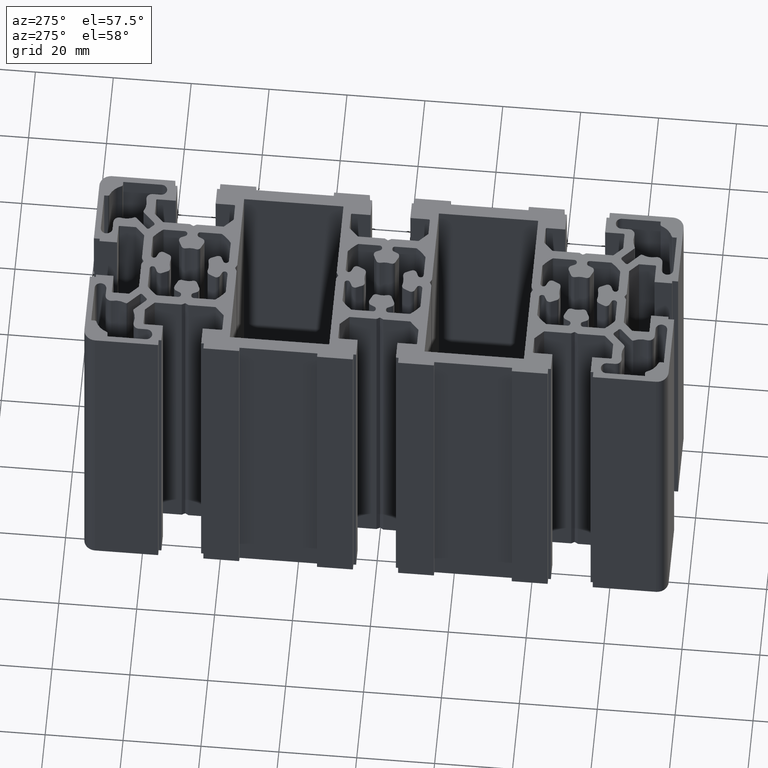
[diagram: clean part render]
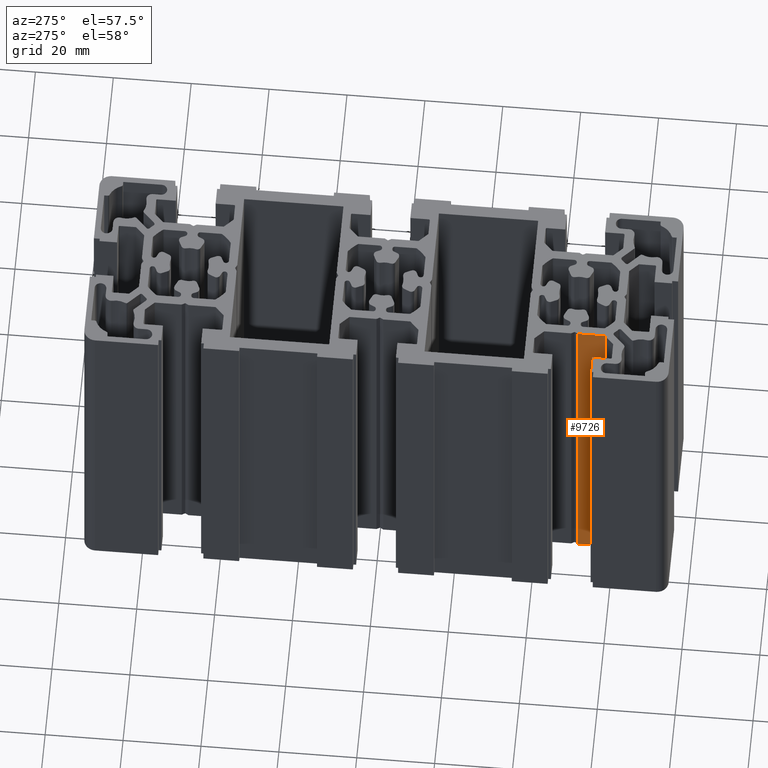
[diagram: same view with one face highlighted and labeled with its STEP entity id]
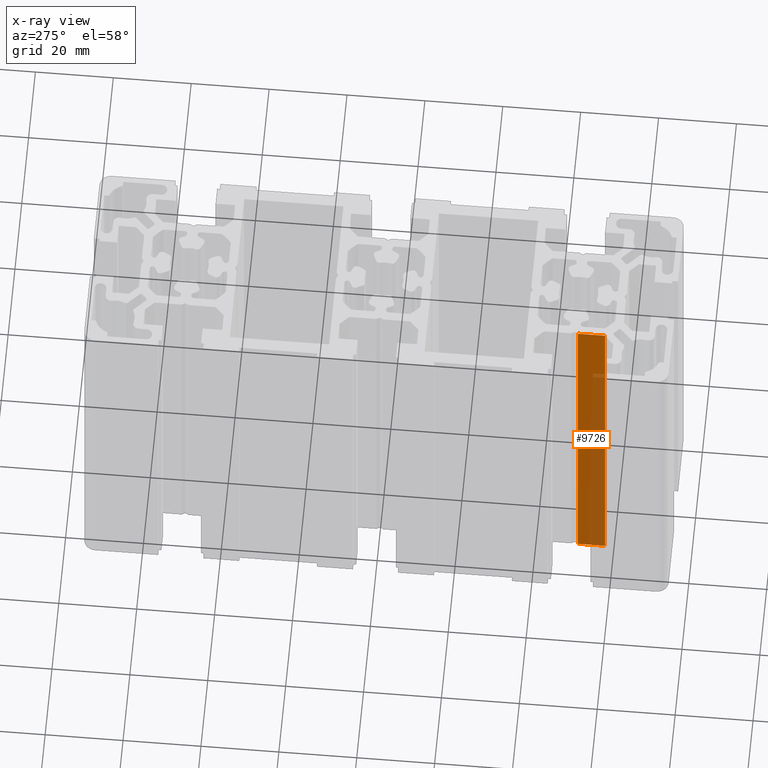
[diagram: x-ray of the same camera — body ghosted, the highlighted face saturated]
A machine part, auxiliary view. The second image highlights one B-rep face of the part: STEP entity #9726.
The next image is the same camera in x-ray: the body ghosted, the highlighted face saturated — about 42% of this face is hidden behind the body in this view.
In plain terms, the highlighted planar face has unit normal (1, 0, -0).
Its self-contained STEP definition (entity closure, byte-faithful):
#421 = CARTESIAN_POINT ( 'NONE',  ( -12.24999999999835200, -50.86602540378572000, 100.0000000000000000 ) ) ;
#954 = DIRECTION ( 'NONE',  ( 4.027855535910073100E-014, -1.000000000000000000, 0.0000000000000000000 ) ) ;
#955 = VECTOR ( 'NONE', #954, 1000.000000000000000 ) ;
#956 = CARTESIAN_POINT ( 'NONE',  ( -12.24999999999835200, -50.86602540378572000, 100.0000000000000000 ) ) ;
#958 = LINE ( 'NONE', #956, #955 ) ;
#974 = CARTESIAN_POINT ( 'NONE',  ( -12.24999999999807100, -57.80000000000126900, 100.0000000000000000 ) ) ;
#1529 = AXIS2_PLACEMENT_3D ( 'NONE', #1548, #1607, #1606 ) ;
#1548 = CARTESIAN_POINT ( 'NONE',  ( -12.24999999999835200, -50.86602540378572000, 100.0000000000000000 ) ) ;
#1569 = FACE_OUTER_BOUND ( 'NONE', #9724, .T. ) ;
#1601 = DIRECTION ( 'NONE',  ( -0.0000000000000000000, -0.0000000000000000000, -1.000000000000000000 ) ) ;
#1602 = VECTOR ( 'NONE', #1601, 1000.000000000000000 ) ;
#1603 = CARTESIAN_POINT ( 'NONE',  ( -12.24999999999807100, -57.80000000000126900, 100.0000000000000000 ) ) ;
#1604 = LINE ( 'NONE', #1603, #1602 ) ;
#1606 = DIRECTION ( 'NONE',  ( -4.027855535910073100E-014, 1.000000000000000000, 0.0000000000000000000 ) ) ;
#1607 = DIRECTION ( 'NONE',  ( 1.000000000000000000, 4.027855535910073100E-014, -0.0000000000000000000 ) ) ;
#1612 = PLANE ( 'NONE',  #1529 ) ;
#1613 = DIRECTION ( 'NONE',  ( -0.0000000000000000000, -0.0000000000000000000, -1.000000000000000000 ) ) ;
#1614 = VECTOR ( 'NONE', #1613, 1000.000000000000000 ) ;
#1615 = CARTESIAN_POINT ( 'NONE',  ( -12.24999999999835200, -50.86602540378572000, 100.0000000000000000 ) ) ;
#1616 = LINE ( 'NONE', #1615, #1614 ) ;
#8194 = VERTEX_POINT ( 'NONE', #16235 ) ;
#8261 = VERTEX_POINT ( 'NONE', #16365 ) ;
#8265 = EDGE_CURVE ( 'NONE', #8261, #8194, #16355, .T. ) ;
#9005 = VERTEX_POINT ( 'NONE', #421 ) ;
#9325 = VERTEX_POINT ( 'NONE', #974 ) ;
#9326 = EDGE_CURVE ( 'NONE', #9005, #9325, #958, .T. ) ;
#9717 = EDGE_CURVE ( 'NONE', #9005, #8261, #1616, .T. ) ;
#9721 = ORIENTED_EDGE ( 'NONE', *, *, #9326, .F. ) ;
#9723 = ORIENTED_EDGE ( 'NONE', *, *, #9727, .F. ) ;
#9724 = EDGE_LOOP ( 'NONE', ( #9728, #9723, #9721, #9731 ) ) ;
#9726 = ADVANCED_FACE ( 'NONE', ( #1569 ), #1612, .F. ) ;
#9727 = EDGE_CURVE ( 'NONE', #9325, #8194, #1604, .T. ) ;
#9728 = ORIENTED_EDGE ( 'NONE', *, *, #8265, .T. ) ;
#9731 = ORIENTED_EDGE ( 'NONE', *, *, #9717, .T. ) ;
#16235 = CARTESIAN_POINT ( 'NONE',  ( -12.24999999999807100, -57.80000000000126900, 0.0000000000000000000 ) ) ;
#16352 = DIRECTION ( 'NONE',  ( 4.027855535910073100E-014, -1.000000000000000000, 0.0000000000000000000 ) ) ;
#16353 = VECTOR ( 'NONE', #16352, 1000.000000000000000 ) ;
#16354 = CARTESIAN_POINT ( 'NONE',  ( -12.24999999999835200, -50.86602540378572000, 0.0000000000000000000 ) ) ;
#16355 = LINE ( 'NONE', #16354, #16353 ) ;
#16365 = CARTESIAN_POINT ( 'NONE',  ( -12.24999999999835200, -50.86602540378572000, 0.0000000000000000000 ) ) ;